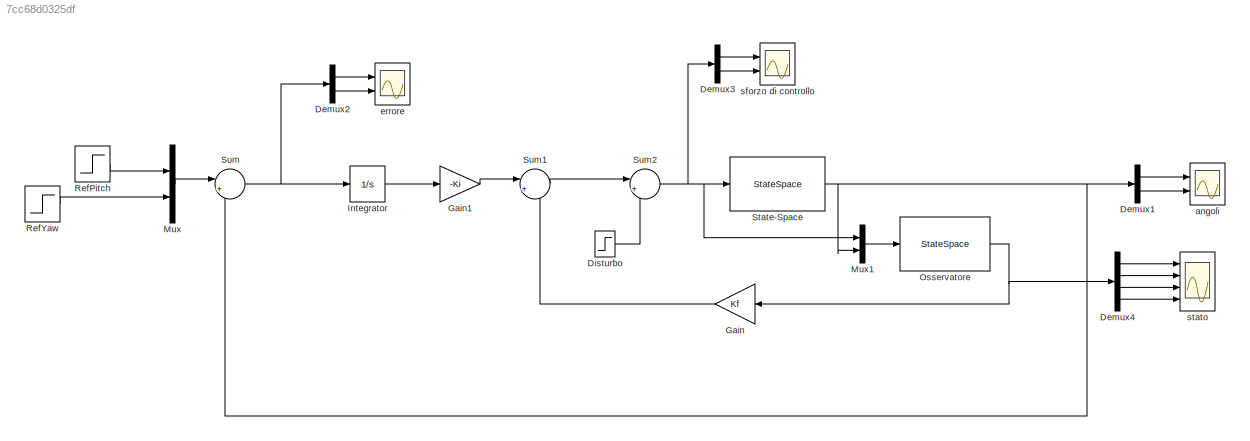
MODEL slx_7cc68d0325df
KIND model
CONFIG AbsTol = auto
CONFIG EnableMultiTasking = off
CONFIG FixedStep = auto
CONFIG MaxStep = 1e-3
CONFIG MinStep = auto
CONFIG RelTol = 1e-3
CONFIG SampleTimeConstraint = Unconstrained
CONFIG SolverName = VariableStepAuto
CONFIG StartTime = 0.0
CONFIG StopTime = 10.0
BLOCK [Demux] Demux1
  Outputs = 2
  Ports = [1, 2]
BLOCK [Demux] Demux2
  Outputs = 2
  Ports = [1, 2]
BLOCK [Demux] Demux3
  Outputs = 2
  Ports = [1, 2]
BLOCK [Demux] Demux4
  Ports = [1, 4]
BLOCK [Step] Disturbo
  SampleTime = 0
  Time = 6
BLOCK [Gain] Gain
  Gain = Kf
  Multiplication = Matrix(K*u)
BLOCK [Gain] Gain1
  Gain = -Ki
  Multiplication = Matrix(K*u)
BLOCK [Integrator] Integrator
  Ports = [1, 1]
BLOCK [Mux] Mux
  DisplayOption = bar
  Inputs = 2
  Ports = [2, 1]
BLOCK [Mux] Mux1
  DisplayOption = bar
  Inputs = 2
  Ports = [2, 1]
BLOCK [StateSpace] Osservatore
  A = Aoss
  B = Boss
  C = Coss
  D = Doss
  InitialCondition = [0.1;0.1;0;0]
  ParameterTunability = Optimized
  Ports = [1, 1]
BLOCK [Step] RefPitch
  After = 0.3
  SampleTime = 0
  Time = 0.1
BLOCK [Step] RefYaw
  After = 0.3
  SampleTime = 0
  Time = 0.1
BLOCK [StateSpace] State-Space
  A = A
  B = B
  C = C
  D = D
  InitialCondition = 0
  Ports = [1, 1]
BLOCK [Sum] Sum
  Inputs = |+-
  Ports = [2, 1]
BLOCK [Sum] Sum1
  Inputs = |+-
  Ports = [2, 1]
BLOCK [Sum] Sum2
  Inputs = |++
  Ports = [2, 1]
BLOCK [Scope] angoli
  Floating = off
  NumInputPorts = 2
  Ports = [2]
  ScopeSpecificationString = Simulink.scopes.TimeScopeBlockCfg('CurrentConfiguration', extmgr.ConfigurationSet(extmgr.Configuration('Core','General UI',true),extmgr.Configuration('Core','Source UI',true),extmgr.Configuration('Sources','WiredSimulink',true,'DataLoggingVariableName','ScopeData1'),extmgr.Configuration('Visuals','Time Domain',true,'SerializedDisplays',{struct('MinYLimReal','0.24246','MaxYLimReal','0.30849','YLabe...<+2084ch>
BLOCK [Scope] errore
  Floating = off
  NumInputPorts = 2
  Ports = [2]
  ScopeSpecificationString = Simulink.scopes.TimeScopeBlockCfg('CurrentConfiguration', extmgr.ConfigurationSet(extmgr.Configuration('Core','General UI',true),extmgr.Configuration('Core','Source UI',true),extmgr.Configuration('Sources','WiredSimulink',true),extmgr.Configuration('Visuals','Time Domain',true,'SerializedDisplays',{struct('MinYLimReal','-0.02713','MaxYLimReal','0.22524','YLabelReal','','MinYLimMag','0.00000','MaxY...<+2068ch>
BLOCK [Scope] sforzo di controllo
  Floating = off
  NumInputPorts = 2
  Ports = [2]
  ScopeSpecificationString = Simulink.scopes.TimeScopeBlockCfg('CurrentConfiguration', extmgr.ConfigurationSet(extmgr.Configuration('Core','General UI',true),extmgr.Configuration('Core','Source UI',true),extmgr.Configuration('Sources','WiredSimulink',true,'DataLoggingVariableName','ScopeData2'),extmgr.Configuration('Visuals','Time Domain',true,'SerializedDisplays',{struct('MinYLimReal','-1.85901','MaxYLimReal','1.33242','YLab...<+2041ch>
BLOCK [Scope] stato
  Floating = off
  NumInputPorts = 4
  Ports = [4]
  ScopeSpecificationString = Simulink.scopes.TimeScopeBlockCfg('CurrentConfiguration', extmgr.ConfigurationSet(extmgr.Configuration('Core','General UI',true),extmgr.Configuration('Core','Source UI',true),extmgr.Configuration('Sources','WiredSimulink',true,'DataLoggingVariableName','ScopeData1'),extmgr.Configuration('Visuals','Time Domain',true,'SerializedDisplays',{struct('MinYLimReal','-0.04937','MaxYLimReal','0.36694','YLab...<+3500ch>
LINE Demux1:1 -> angoli:1
LINE Demux1:2 -> angoli:2
LINE Demux2:1 -> errore:1
LINE Demux2:2 -> errore:2
LINE Demux3:1 -> sforzo di controllo:1
LINE Demux3:2 -> sforzo di controllo:2
LINE Demux4:1 -> stato:1
LINE Demux4:2 -> stato:2
LINE Demux4:3 -> stato:3
LINE Demux4:4 -> stato:4
LINE Disturbo:1 -> Sum2:2
LINE Gain1:1 -> Sum1:1
LINE Gain:1 -> Sum1:2
LINE Integrator:1 -> Gain1:1
LINE Mux1:1 -> Osservatore:1
LINE Mux:1 -> Sum:1
NET Osservatore:1 -> Demux4:1, Gain:1
LINE RefPitch:1 -> Mux:1
LINE RefYaw:1 -> Mux:2
NET State-Space:1 -> Demux1:1, Mux1:2, Sum:2
LINE Sum1:1 -> Sum2:1
NET Sum2:1 -> Demux3:1, Mux1:1, State-Space:1
NET Sum:1 -> Demux2:1, Integrator:1
note: NET lines group one-source signal fan-out (src -> all destinations, sorted); 1:1 wires keep LINE
